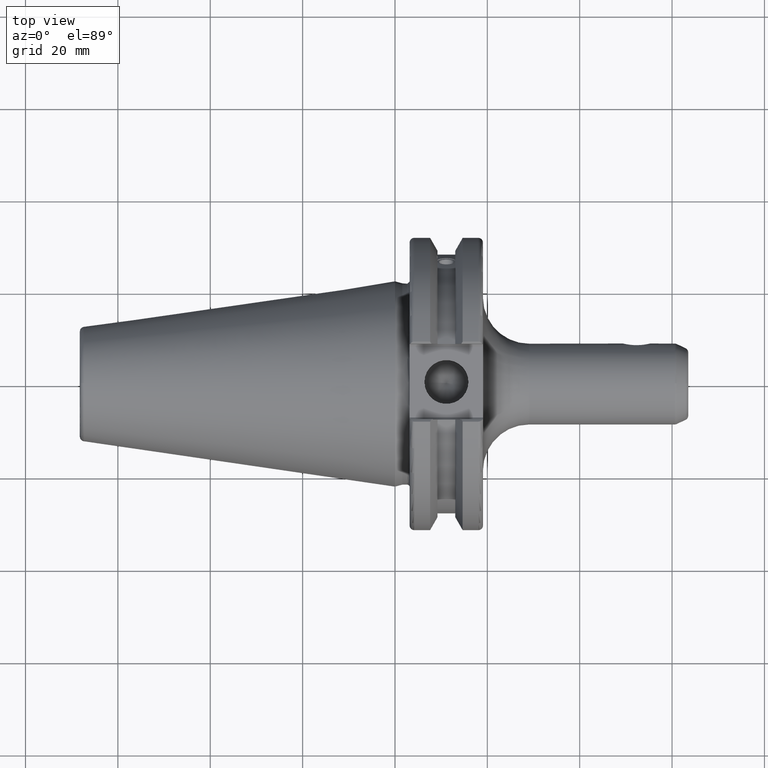
[diagram: clean part render]
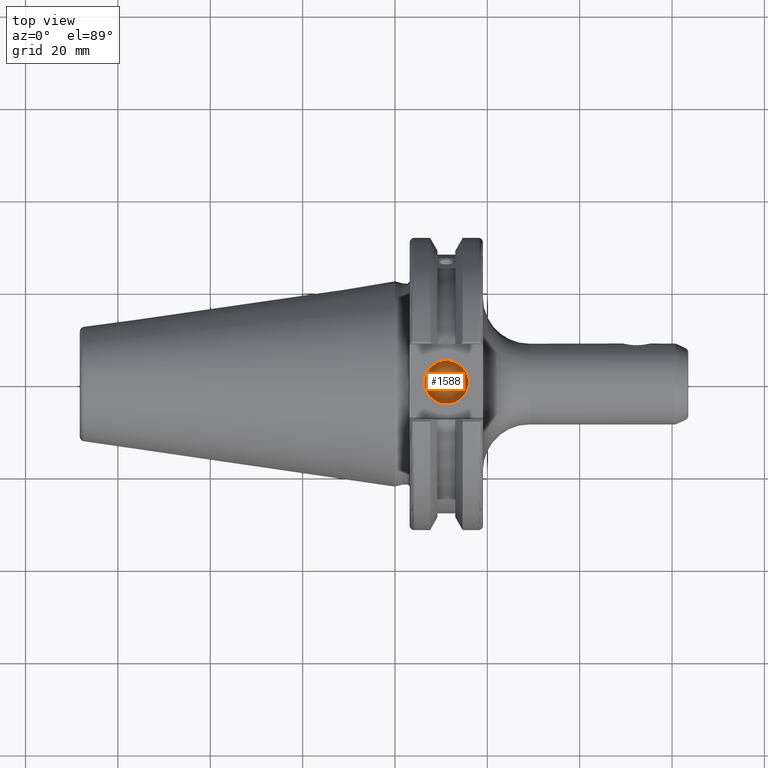
[diagram: same view with one face highlighted and labeled with its STEP entity id]
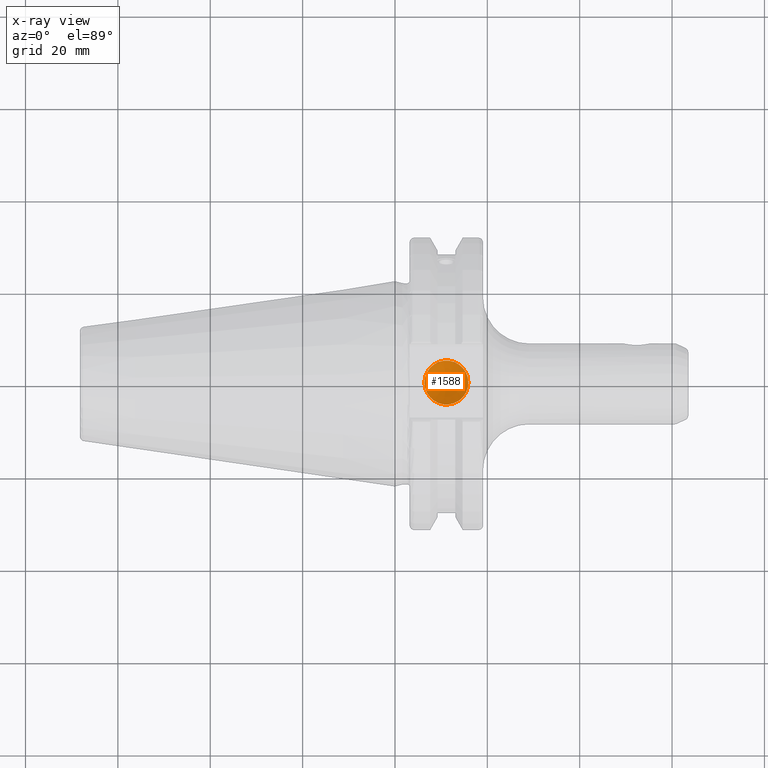
[diagram: x-ray of the same camera — body ghosted, the highlighted face saturated]
A machine part, top view. The second image highlights one B-rep face of the part: STEP entity #1588.
The next image is the same camera in x-ray: the body ghosted, the highlighted face saturated — about 0% of this face is hidden behind the body in this view.
In plain terms, the highlighted conical surface has half-angle 59 deg.
Its self-contained STEP definition (entity closure, byte-faithful):
#58=CONICAL_SURFACE('',#1783,2.38125,1.02974425867665);
#186=LINE('',#3103,#280);
#280=VECTOR('',#2217,2.38125);
#436=FACE_OUTER_BOUND('',#537,.T.);
#537=EDGE_LOOP('',(#1439,#1440,#1441));
#621=CIRCLE('',#1784,4.7625);
#784=VERTEX_POINT('',#3100);
#785=VERTEX_POINT('',#3102);
#1013=EDGE_CURVE('',#784,#784,#621,.T.);
#1014=EDGE_CURVE('',#784,#785,#186,.T.);
#1439=ORIENTED_EDGE('',*,*,#1013,.T.);
#1440=ORIENTED_EDGE('',*,*,#1014,.T.);
#1441=ORIENTED_EDGE('',*,*,#1014,.F.);
#1588=ADVANCED_FACE('',(#436),#58,.F.);
#1783=AXIS2_PLACEMENT_3D('',#3099,#2213,#2214);
#1784=AXIS2_PLACEMENT_3D('',#3101,#2215,#2216);
#2213=DIRECTION('center_axis',(0.,0.,1.));
#2214=DIRECTION('ref_axis',(1.,0.,0.));
#2215=DIRECTION('center_axis',(0.,0.,1.));
#2216=DIRECTION('ref_axis',(1.,0.,0.));
#2217=DIRECTION('',(0.857167300702112,1.04972719113862E-16,-0.515038074910054));
#3099=CARTESIAN_POINT('Origin',(11.1341,0.,15.5692006509406));
#3100=CARTESIAN_POINT('',(6.3716,-5.83238038093927E-16,17.));
#3101=CARTESIAN_POINT('Origin',(11.1341,0.,17.));
#3102=CARTESIAN_POINT('',(11.1341,0.,14.1384013018812));
#3103=CARTESIAN_POINT('',(8.75285,-2.91619019046964E-16,15.5692006509406));